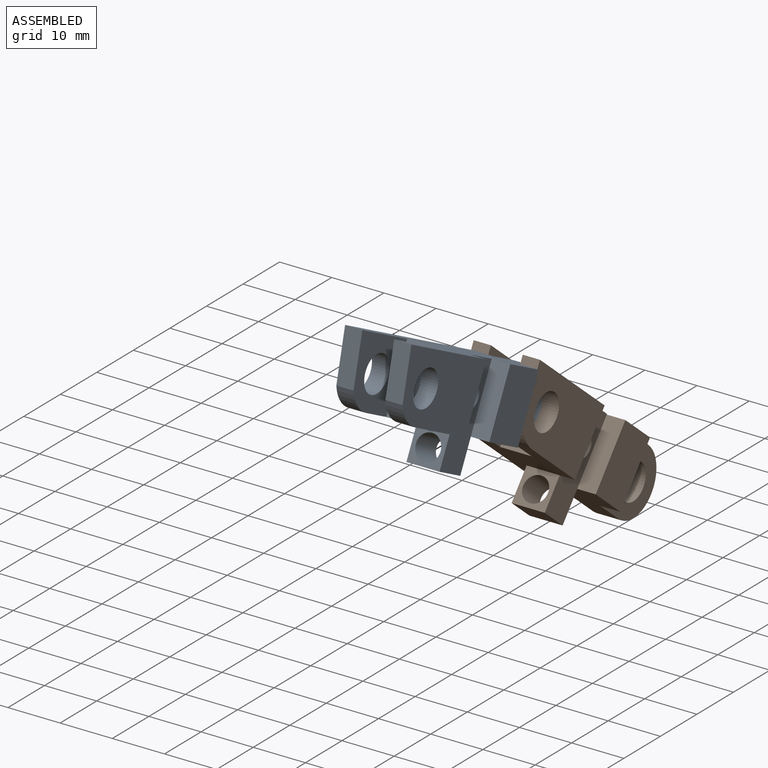
[diagram: assembled view]
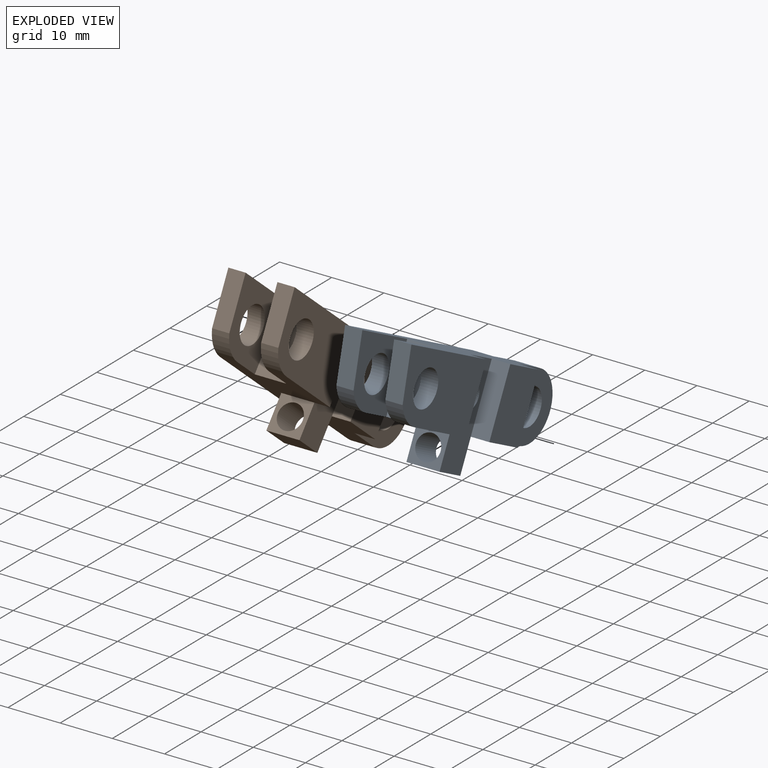
[diagram: exploded view]
GUIDED TOUR — MATED ASSEMBLY WITH SUBASSEMBLIES (Onshape document e4f9c308d3d471a792836808, AutoMate assembly e4f9c308d3d471a792836808_c41b21830b635fe07dd93711_46ee412eae17d96153552972_default)

This assembly has 4 component occurrences arranged in 2 top-level units: 0 individual components plus 2 subassemblies (S0, S1). The tour has two levels: first the top level, where each subassembly is treated as one rigid unit; then each subassembly is toured internally in its own section (nesting deeper than one subassembly level is flattened into its subassembly's section).

Components are labeled P0..P3 across the whole record; subassembly units are labeled S0..S1. A mate is a constraint between two units; its type names the relative motion it leaves free:
  PLANAR — leaves sliding in the plane through the listed point (normal = the listed direction) and rotation about that normal free,
  REVOLUTE — leaves rotation about the listed axis free (a hinge).
Axis/direction vectors are unit vectors and 'through' points are millimeter coordinates, both in the assembly's world frame.

TOP-LEVEL MATES (between units; each subassembly's internal mates are listed in its own section)
  1. REVOLUTE "Revolute 1": S0 <-> S1, axis (-1.000, 0.000, 0.000) through (2.48, 12.02, 28.86) mm

TOP-LEVEL ASSEMBLY ORDER
  1. S0 — the base component [order heuristic]
  2. S1 [order heuristic]
Order-tag legend:
  [order heuristic] — this assembly is geometrically interlocked (no collision-free removal order exists), so components are listed in mate-graph order; insertion feasibility is not verified.

Of the 4 component occurrences, 4 carry the full construction recipe — the FeatureScript program that regenerates the part's solid from scratch; the rest are supplied as boundary geometry only. Each toured unit is shown spotlighted twice — assembled, then exploded with a leader line back to its socket (green = recipe-attached component, orange = geometry-only, blue = subassembly unit; the rest desaturated gray).
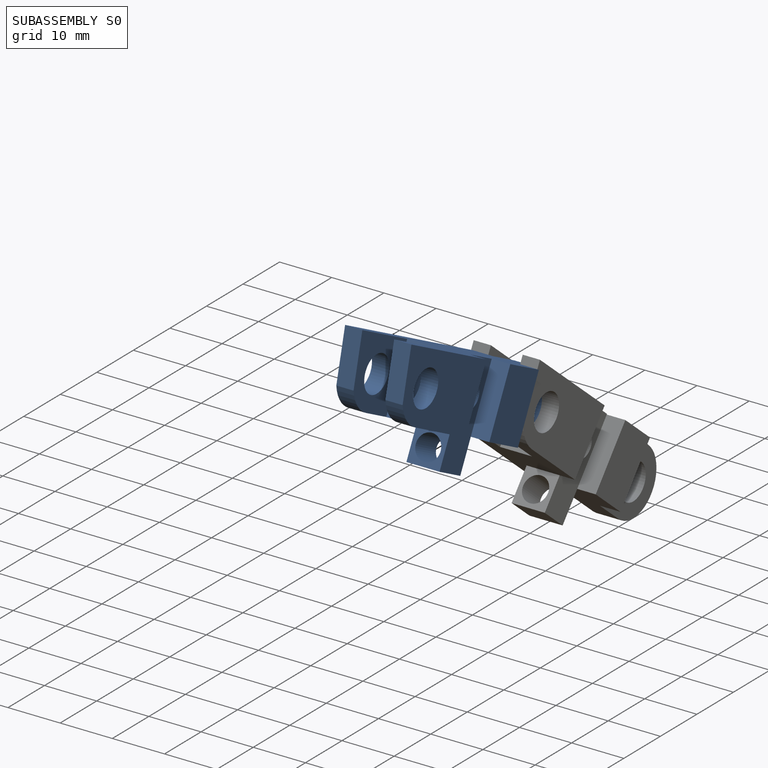
[diagram: subassembly S0 — assembled]
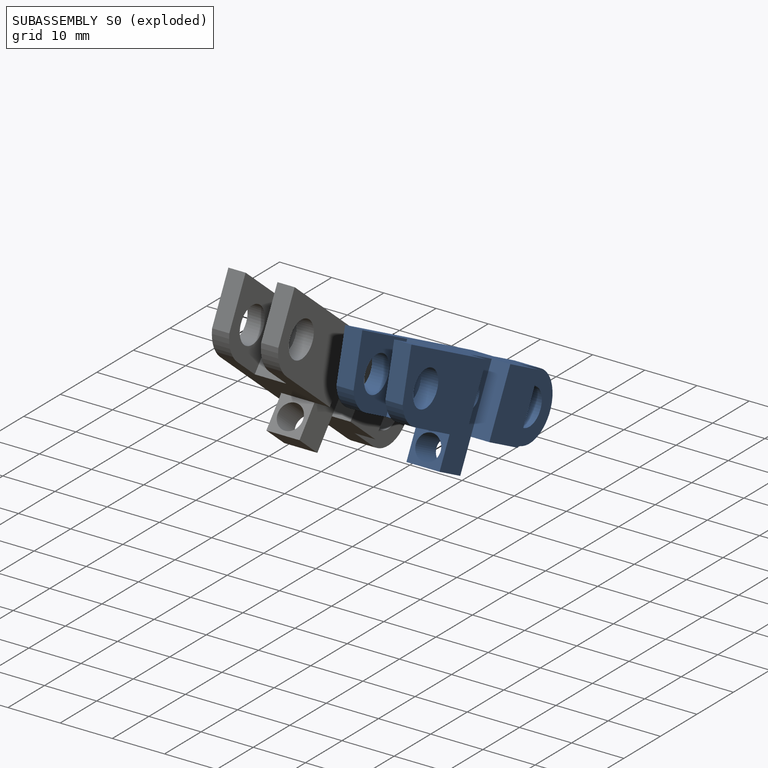
[diagram: subassembly S0 — exploded]
SUBASSEMBLY S0 — 2 components (P0, P1), of which 2 recipe-attached; toured below.
Held by: REVOLUTE mate "Revolute 1" to S1.
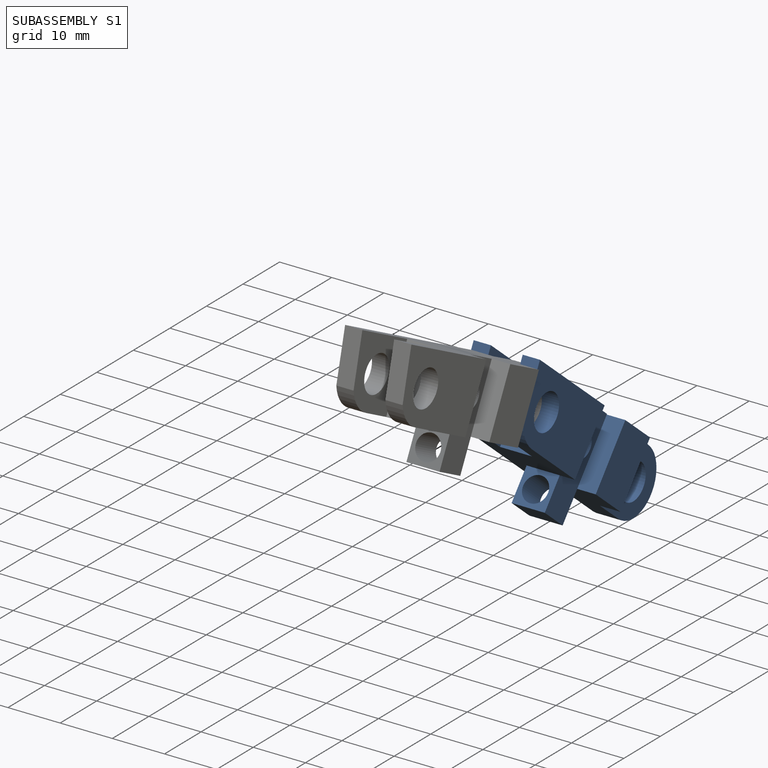
[diagram: subassembly S1 — assembled]
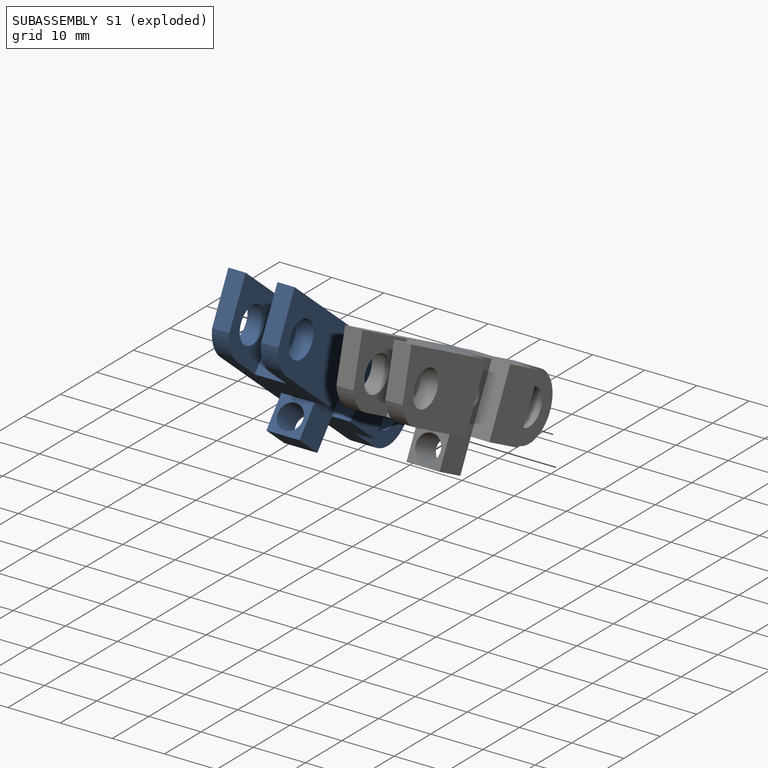
[diagram: subassembly S1 — exploded]
SUBASSEMBLY S1 — 2 components (P2, P3), of which 2 recipe-attached; toured below.
Held by: REVOLUTE mate "Revolute 1" to S0.
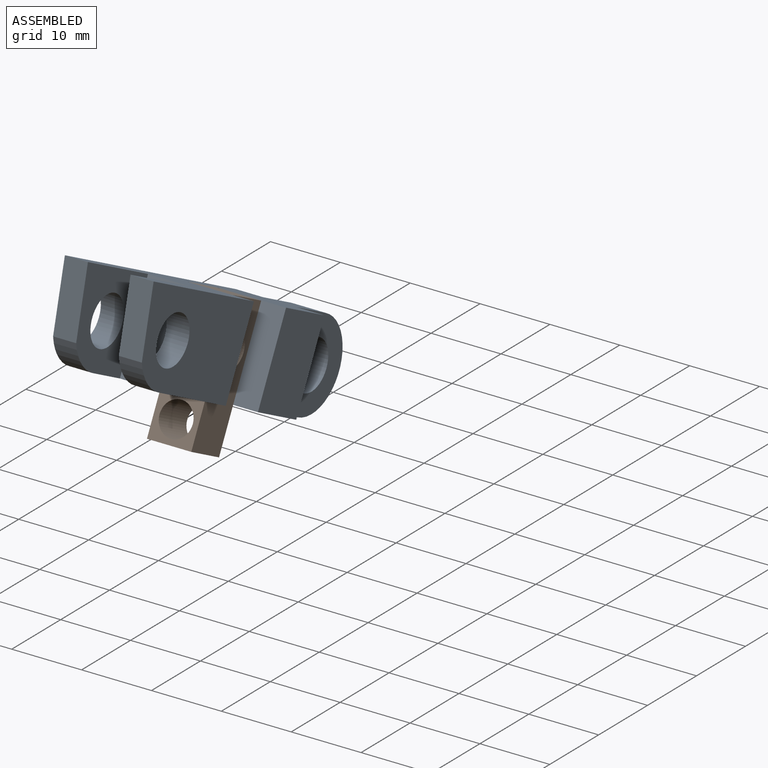
[diagram: subassembly S0 — assembled view]
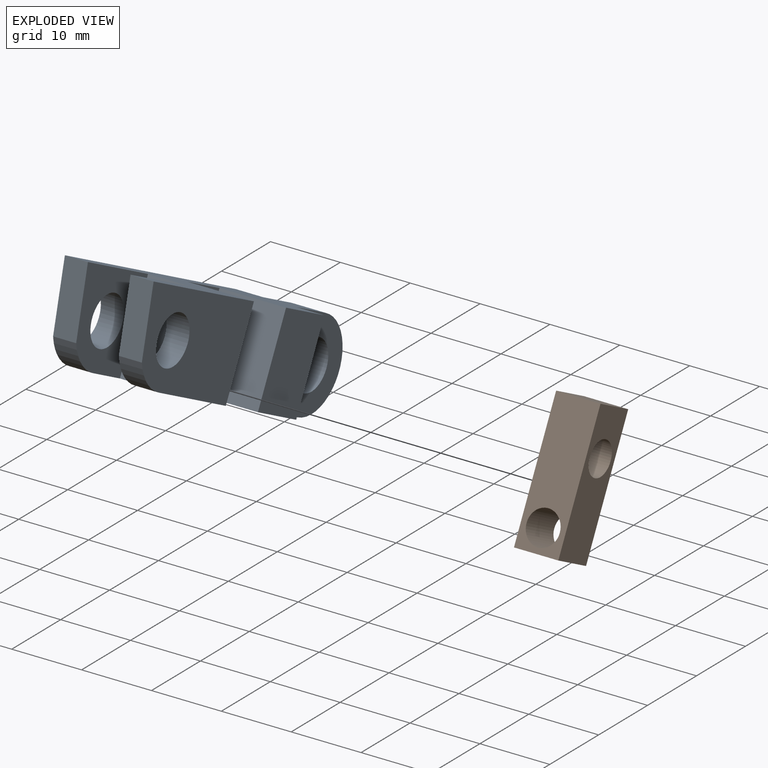
[diagram: subassembly S0 — exploded view]
SUBASSEMBLY S0 TOUR — 2 components, shown here in isolation at its own camera.

INTERNAL MATES
  1. REVOLUTE "Revolute 3": P0 <-> P1, axis (1.000, 0.000, 0.000) through (-3.10, -5.07, 37.52) mm
  2. PLANAR "Planar 1": P0 <-> P1, direction (0.000, 0.452, 0.892) through (1.66, -5.38, 44.80) mm
  3. REVOLUTE "Revolute 3": P0 <-> P1, axis (1.000, 0.000, 0.000) through (-3.10, -5.07, 37.52) mm
  4. PLANAR "Planar 1": P0 <-> P1, direction (0.000, 0.452, 0.892) through (1.66, -5.38, 44.80) mm

ASSEMBLY ORDER (within the subassembly)
  1. P0 — the base component [order verified]
  2. P1 [order verified]
Order-tag legend:
  [order verified] — this step's position reverses a verified removal order: the component was checked to insert without passing through the ones already placed.
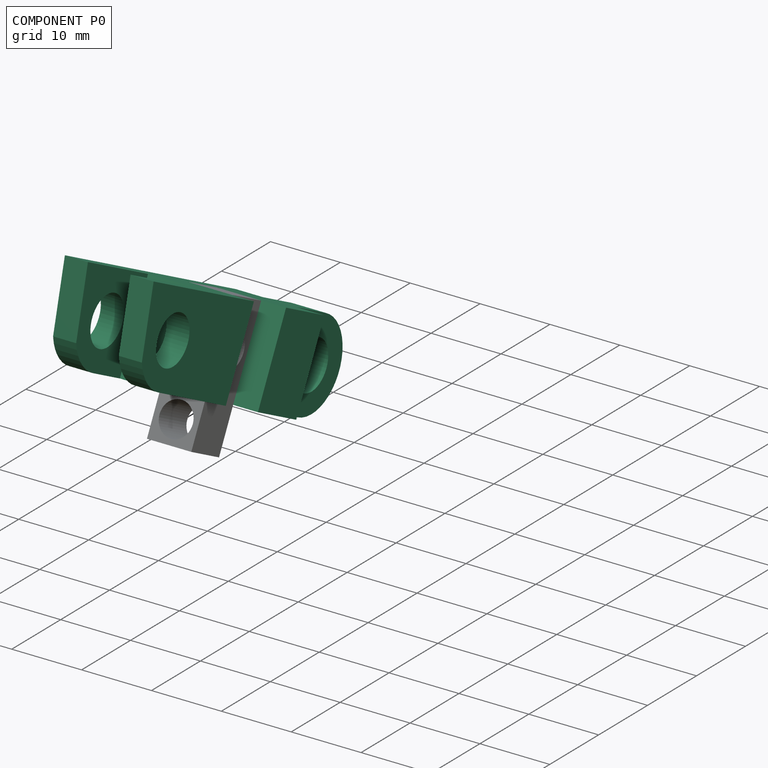
[diagram: component P0 — assembled]
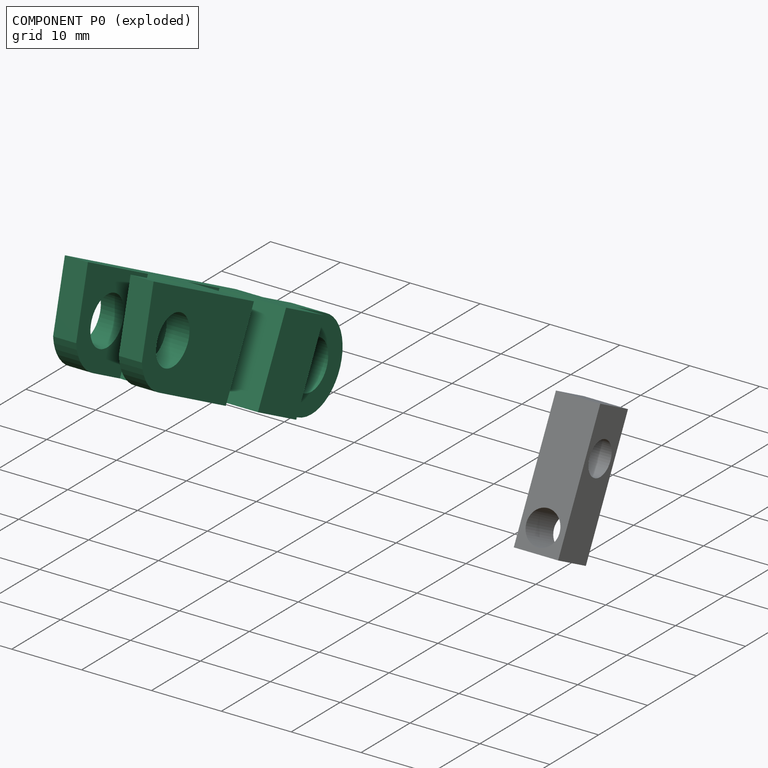
[diagram: component P0 — exploded]
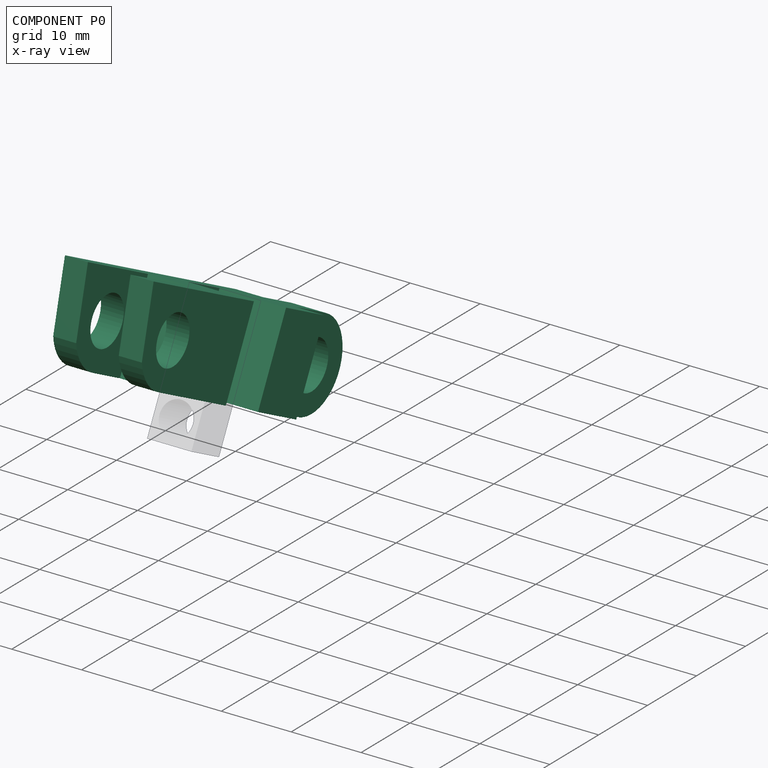
[diagram: component P0 — x-ray view]
COMPONENT P0 — recipe-attached (CADFS 00446565, mesh-verified: the recipe's output STEP matches this component's geometry to below the mesh-comparison resolution (tessellation chordal tolerance ~0.0826 mm)).
Held by: REVOLUTE mate "Revolute 3" to P1; PLANAR mate "Planar 1" to P1; REVOLUTE mate "Revolute 3" to P1; PLANAR mate "Planar 1" to P1.
Construction recipe (FeatureScript — the CAD program that rebuilds this solid; sketch coordinates are in the units given by the * unit suffixes, e.g. mm):

FeatureScript 1511;
import(path : "onshape/std/geometry.fs", version : "1511.0");
import(path : "onshape/std/common.fs", version : "1511.0");
const mm = millimeter;
const VERTEX = EntityType.VERTEX;
const EDGE = EntityType.EDGE;
const FACE = EntityType.FACE;
const BODY = EntityType.BODY;
function v(x, y){return vector(x, y);}
function OD(order){return orderDisambiguation(order);}
function OSD(set){return originalSetDisambiguation(set);}
function TD(topology){return topologyDisambiguation(topology);}
function TDD(query){return trueDependencyDisambiguation(query);}
function sQuery(a, b, c) {return sketchEntityQuery(a, b, c);}

annotation { "Feature Type Name" : "Feature", "Feature Type Description" : "" }
export const myFeature = defineFeature(function(context is Context, id is Id, definition is map)
    precondition{}
    {
        {
            var Q0;
            Q0=qCreatedBy(makeId("Right.planeOp"),FACE);
            var sketch = newSketch(context, id + "F0", { "sketchPlane" : qUnion([Q0])});
            skLineSegment(sketch, "E0.bottom", {"start": v(6.35, 0) * mm, "end": v(44.45, 0) * mm});
            skLineSegment(sketch, "E0.top", {"start": v(0, 12.7) * mm, "end": v(44.45, 12.7) * mm});
            skLineSegment(sketch, "E0.right", {"start": v(50.8, 6.35) * mm, "end": v(50.8, 6.35) * mm});
            skPoint(sketch, "E1.visualSharp", {"position": v(0, 0) * mm});
            skPoint(sketch, "E2.visualSharp", {"position": v(50.8, 0) * mm});
            skArc(sketch, "E2.filletArc", {"start": v(44.45, 0) * mm, "mid": v(48.94, 1.86) * mm, "end": v(50.8, 6.35) * mm});
            skPoint(sketch, "E3.visualSharp", {"position": v(50.8, 12.7) * mm});
            skArc(sketch, "E3.filletArc", {"start": v(50.8, 6.35) * mm, "mid": v(48.94, 10.84) * mm, "end": v(44.45, 12.7) * mm});
            skCircle(sketch, "E4", {"center": v(44.45, 6.35) * mm, "radius": 3.43 * mm});
            skCircle(sketch, "E5", {"center": v(6.35, 6.35) * mm, "radius": 3.43 * mm});
            skLineSegment(sketch, "E6", {"start": v(0, 12.7) * mm, "end": v(-1.27, 12.7) * mm});
            skArc(sketch, "E7", {"start": v(6.35, 0) * mm, "mid": v(3.23, 0.82) * mm, "end": v(0.91, 3.07) * mm});
            skLineSegment(sketch, "E8", {"start": v(-1.27, 12.7) * mm, "end": v(0.91, 3.07) * mm});
            skSolve(sketch);
        }
        {
            var Q0;
            Q0 = qSketchRegion(id + "F0", true);
            extrude(context, id + "F1", {"entities" : qUnion([Q0]), "depth" : 12.7 * mm});
        }
        {
            var Q0;
            Q0=makeQuery(id+"F1.opExtrude","SWEPT_FACE",FACE,{"disambiguationData":[OSD([sQuery(id+"F0.wireOp",EDGE,"E0.top")])]});
            var sketch = newSketch(context, id + "F2", { "sketchPlane" : qUnion([Q0])});
            skLineSegment(sketch, "E9.bottom", {"start": v(9.4, -9.23) * mm, "end": v(3.3, -9.23) * mm});
            skLineSegment(sketch, "E9.top", {"start": v(9.4, 12.5) * mm, "end": v(3.3, 12.5) * mm});
            skLineSegment(sketch, "E9.left", {"start": v(9.4, -9.23) * mm, "end": v(9.4, 12.5) * mm});
            skLineSegment(sketch, "E9.right", {"start": v(3.3, -9.23) * mm, "end": v(3.3, 12.5) * mm});
            skLineSegment(sketch, "E10.bottom", {"start": v(0, 51.09) * mm, "end": v(3.94, 51.09) * mm});
            skLineSegment(sketch, "E10.top", {"start": v(0, 37.85) * mm, "end": v(3.94, 37.85) * mm});
            skLineSegment(sketch, "E10.left", {"start": v(0, 51.09) * mm, "end": v(0, 37.85) * mm});
            skLineSegment(sketch, "E10.right", {"start": v(3.94, 51.09) * mm, "end": v(3.94, 37.85) * mm});
            skLineSegment(sketch, "E11.bottom", {"start": v(12.7, 37.85) * mm, "end": v(8.76, 37.85) * mm});
            skLineSegment(sketch, "E11.top", {"start": v(12.7, 51.09) * mm, "end": v(8.76, 51.09) * mm});
            skLineSegment(sketch, "E11.left", {"start": v(12.7, 37.85) * mm, "end": v(12.7, 51.09) * mm});
            skLineSegment(sketch, "E11.right", {"start": v(8.76, 37.85) * mm, "end": v(8.76, 51.09) * mm});
            skSolve(sketch);
        }
        {
            var Q0;
            Q0 = qSketchRegion(id + "F2", true);
            extrude(context, id + "F3", {"entities" : qUnion([Q0]), "operationType" : NewBodyOperationType.REMOVE, "oppositeDirection" : true, "depth" : 25.4 * mm});
        }
        {
            var Q0;
            Q0=makeQuery(id+"F1.opExtrude","CAP_FACE",FACE,{"disambiguationData":[OSD([sQuery(id+"F0.wireOp",EDGE,"E0.bottom"),sQuery(id+"F0.wireOp",EDGE,"E0.top"),sQuery(id+"F0.wireOp",EDGE,"E0.left"),sQuery(id+"F0.wireOp",EDGE,"E1.filletArc"),sQuery(id+"F0.wireOp",EDGE,"E2.filletArc"),sQuery(id+"F0.wireOp",EDGE,"E3.filletArc"),sQuery(id+"F0.wireOp",EDGE,"E4"),sQuery(id+"F0.wireOp",EDGE,"E5")])],"isStart":false});
            var sketch = newSketch(context, id + "F4", { "sketchPlane" : qUnion([Q0])});
            skLineSegment(sketch, "E12.bottom", {"start": v(21.72, 12.7) * mm, "end": v(29.08, 12.7) * mm});
            skLineSegment(sketch, "E12.top", {"start": v(21.72, 0) * mm, "end": v(29.08, 0) * mm});
            skLineSegment(sketch, "E12.left", {"start": v(21.72, 12.7) * mm, "end": v(21.72, 0) * mm});
            skLineSegment(sketch, "E12.right", {"start": v(29.08, 12.7) * mm, "end": v(29.08, 0) * mm});
            skSolve(sketch);
        }
        {
            var Q0;
            Q0 = qSketchRegion(id + "F4", true);
            extrude(context, id + "F5", {"entities" : qUnion([Q0]), "operationType" : NewBodyOperationType.REMOVE, "oppositeDirection" : true, "depth" : 9.52 * mm});
        }
        {
            var Q0;
            Q0=makeQuery(id+"F5.boolean.opBoolean","COPY",FACE,{"derivedFrom":makeQuery(id+"F5.opExtrude","CAP_FACE",FACE,{"disambiguationData":[OSD([sQuery(id+"F4.wireOp",EDGE,"E12.bottom"),sQuery(id+"F4.wireOp",EDGE,"E12.top"),sQuery(id+"F4.wireOp",EDGE,"E12.left"),sQuery(id+"F4.wireOp",EDGE,"E12.right")])],"isStart":false})});
            var sketch = newSketch(context, id + "F6", { "sketchPlane" : qUnion([Q0])});
            skCircle(sketch, "E13", {"center": v(25.3, 6.35) * mm, "radius": 2.64 * mm});
            skSolve(sketch);
        }
        {
            var Q0;
            Q0 = qSketchRegion(id + "F6", true);
            extrude(context, id + "F7", {"entities" : qUnion([Q0]), "operationType" : NewBodyOperationType.REMOVE, "oppositeDirection" : true, "depth" : 25.4 * mm});
        }
    });
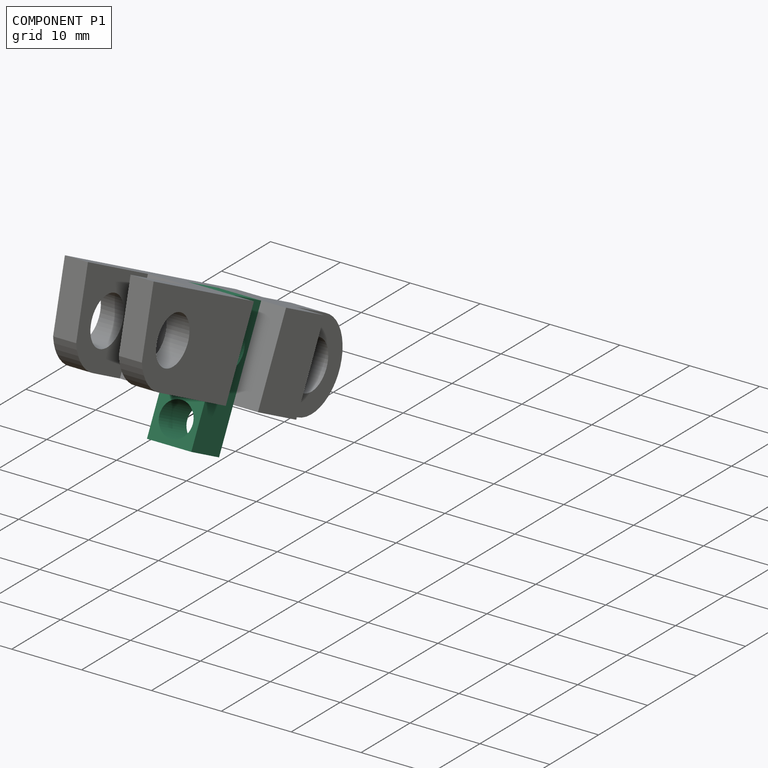
[diagram: component P1 — assembled]
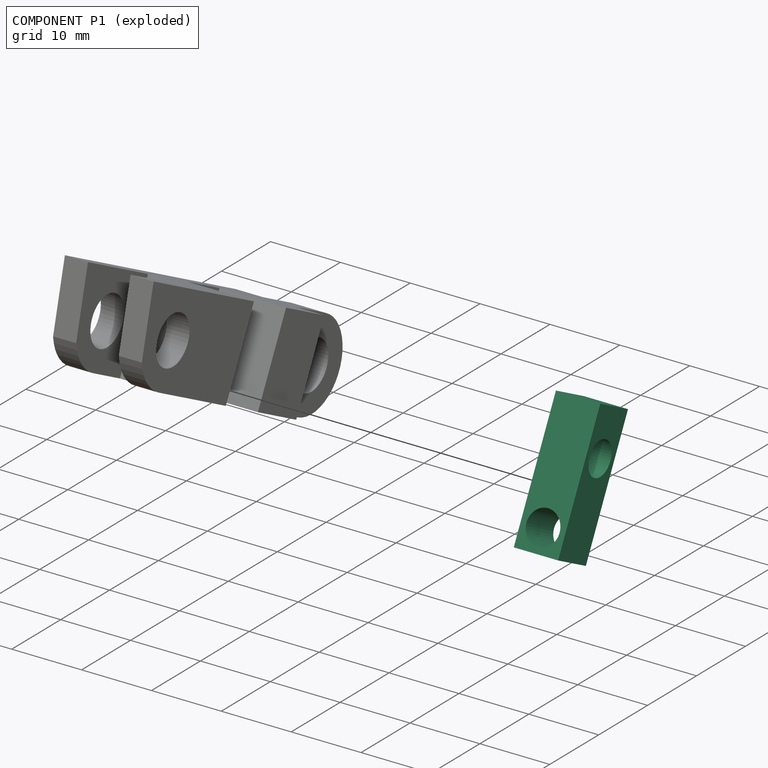
[diagram: component P1 — exploded]
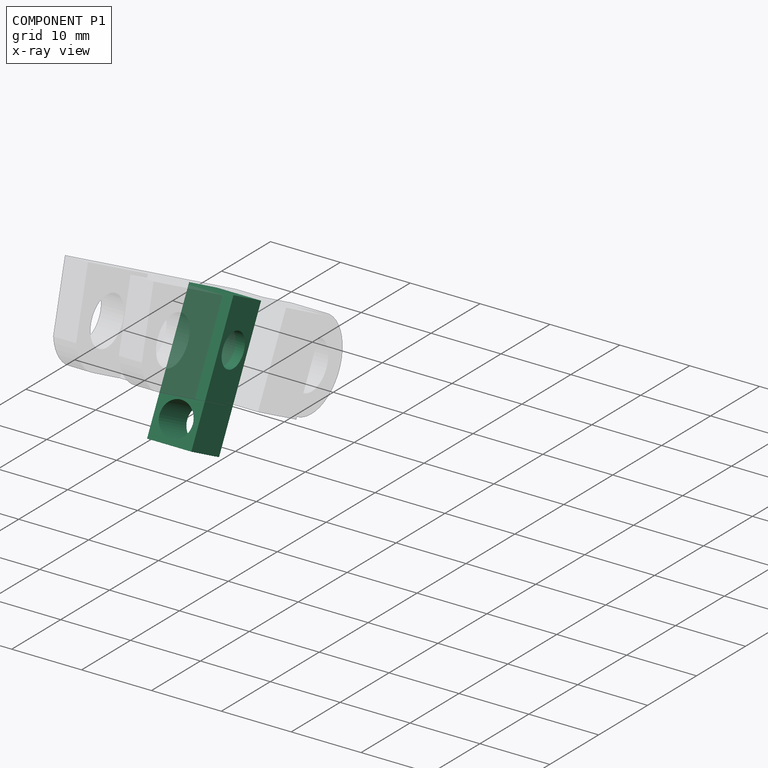
[diagram: component P1 — x-ray view]
COMPONENT P1 — recipe-attached (CADFS 00446566, mesh-verified: the recipe's output STEP matches this component's geometry to below the mesh-comparison resolution (tessellation chordal tolerance ~0.0316 mm)).
Held by: REVOLUTE mate "Revolute 3" to P0; PLANAR mate "Planar 1" to P0; REVOLUTE mate "Revolute 3" to P0; PLANAR mate "Planar 1" to P0.
Construction recipe (FeatureScript — the CAD program that rebuilds this solid; sketch coordinates are in the units given by the * unit suffixes, e.g. mm):

FeatureScript 1511;
import(path : "onshape/std/geometry.fs", version : "1511.0");
import(path : "onshape/std/common.fs", version : "1511.0");
const mm = millimeter;
const VERTEX = EntityType.VERTEX;
const EDGE = EntityType.EDGE;
const FACE = EntityType.FACE;
const BODY = EntityType.BODY;
function v(x, y){return vector(x, y);}
function OD(order){return orderDisambiguation(order);}
function OSD(set){return originalSetDisambiguation(set);}
function TD(topology){return topologyDisambiguation(topology);}
function TDD(query){return trueDependencyDisambiguation(query);}
function sQuery(a, b, c) {return sketchEntityQuery(a, b, c);}

annotation { "Feature Type Name" : "Feature", "Feature Type Description" : "" }
export const myFeature = defineFeature(function(context is Context, id is Id, definition is map)
    precondition{}
    {
        {
            var Q0;
            Q0=qCreatedBy(makeId("Right.planeOp"),FACE);
            var sketch = newSketch(context, id + "F0", { "sketchPlane" : qUnion([Q0])});
            skLineSegment(sketch, "E0.bottom", {"start": v(0, 0) * mm, "end": v(6.35, 0) * mm});
            skLineSegment(sketch, "E0.top", {"start": v(0, 19.05) * mm, "end": v(6.35, 19.05) * mm});
            skLineSegment(sketch, "E0.left", {"start": v(0, 0) * mm, "end": v(0, 19.05) * mm});
            skLineSegment(sketch, "E0.right", {"start": v(6.35, 0) * mm, "end": v(6.35, 19.05) * mm});
            skCircle(sketch, "E1", {"center": v(3.17, 6.35) * mm, "radius": 2.38 * mm});
            skPoint(sketch, "E2", {"position": v(3.18, 0) * mm});
            skSolve(sketch);
        }
        {
            var Q0;
            Q0 = qSketchRegion(id + "F0", true);
            extrude(context, id + "F1", {"entities" : qUnion([Q0]), "depth" : 6.35 * mm});
        }
        {
            var Q0;
            Q0=makeQuery(id+"F1.opExtrude","SWEPT_FACE",FACE,{"disambiguationData":[OSD([sQuery(id+"F0.wireOp",EDGE,"E0.right")])]});
            var sketch = newSketch(context, id + "F2", { "sketchPlane" : qUnion([Q0])});
            skCircle(sketch, "E3", {"center": v(-3.18, 15.88) * mm, "radius": 2.38 * mm});
            skPoint(sketch, "E3.centerSnap0", {"position": v(-3.18, 19.05) * mm});
            skSolve(sketch);
        }
        {
            var Q0;
            Q0 = qSketchRegion(id + "F2", true);
            extrude(context, id + "F3", {"entities" : qUnion([Q0]), "operationType" : NewBodyOperationType.REMOVE, "oppositeDirection" : true, "depth" : 25.4 * mm});
        }
    });
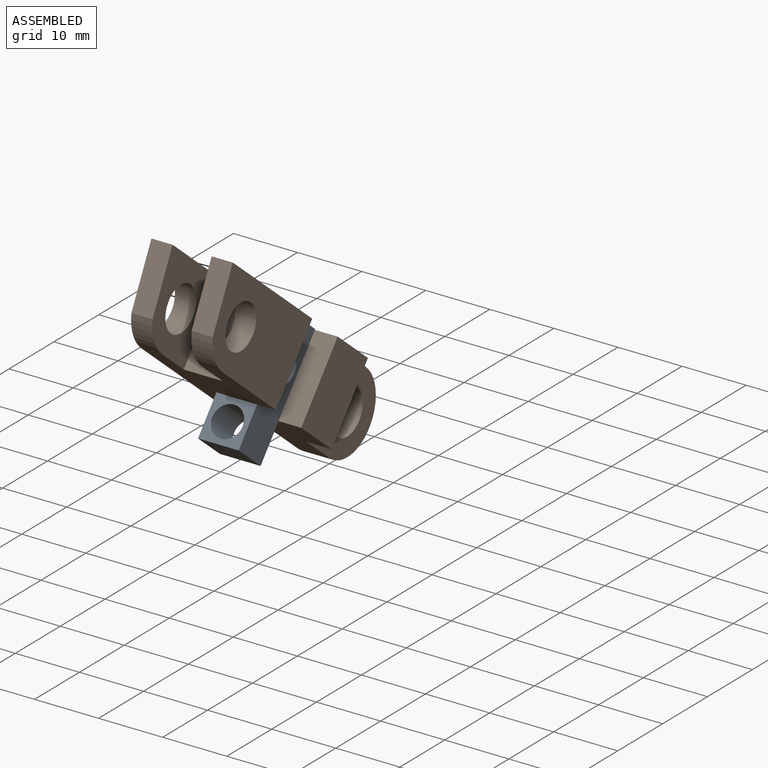
[diagram: subassembly S1 — assembled view]
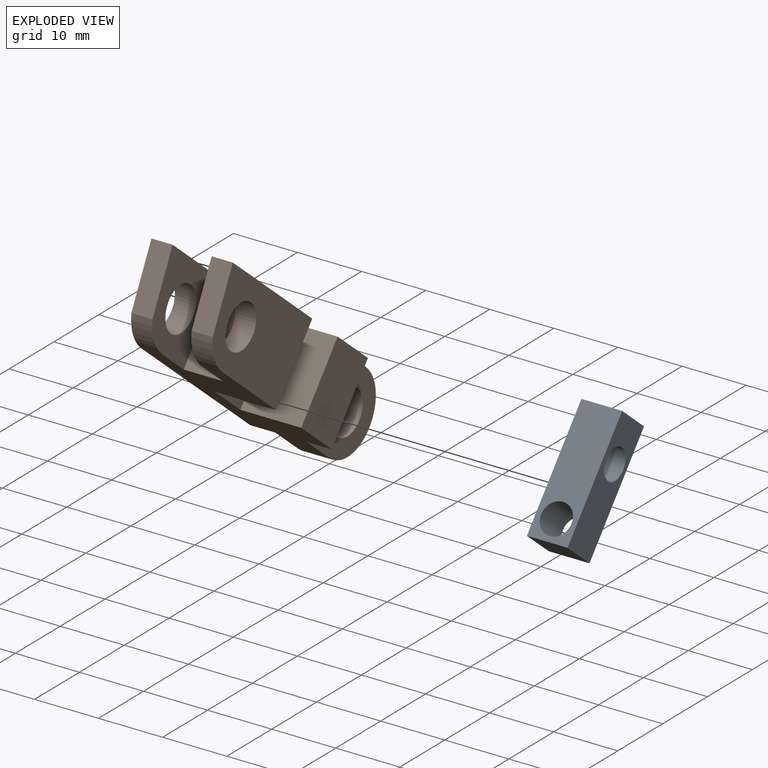
[diagram: subassembly S1 — exploded view]
SUBASSEMBLY S1 TOUR — 2 components, shown here in isolation at its own camera.

INTERNAL MATES
  1. REVOLUTE "Revolute 3": P3 <-> P2, axis (1.000, 0.000, 0.000) through (-3.74, 26.60, 16.77) mm
  2. PLANAR "Planar 1": P3 <-> P2, direction (0.000, 0.638, 0.770) through (1.02, 27.90, 23.94) mm
  3. PLANAR "Planar 1": P3 <-> P2, direction (0.000, 0.638, 0.770) through (1.02, 27.90, 23.94) mm
  4. REVOLUTE "Revolute 3": P3 <-> P2, axis (1.000, 0.000, 0.000) through (-3.74, 26.60, 16.77) mm

ASSEMBLY ORDER (within the subassembly)
  1. P3 — the base component [order verified]
  2. P2 [order verified]
Order-tag legend:
  [order verified] — this step's position reverses a verified removal order: the component was checked to insert without passing through the ones already placed.
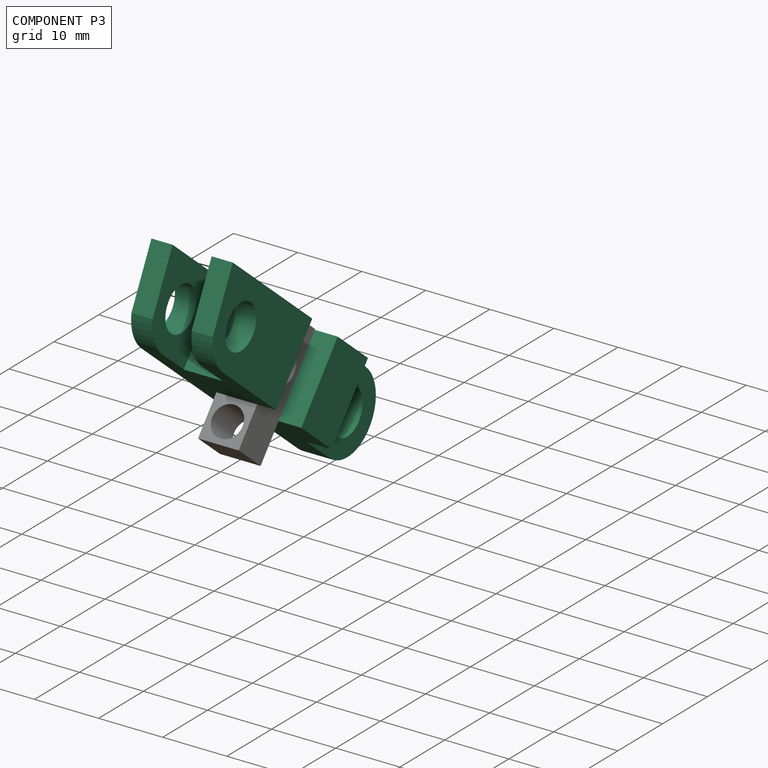
[diagram: component P3 — assembled]
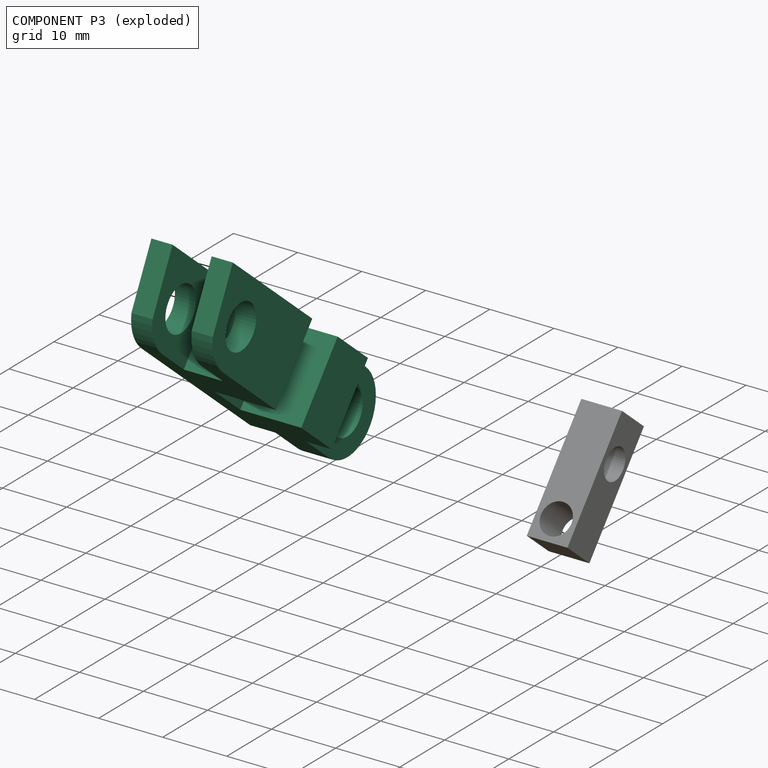
[diagram: component P3 — exploded]
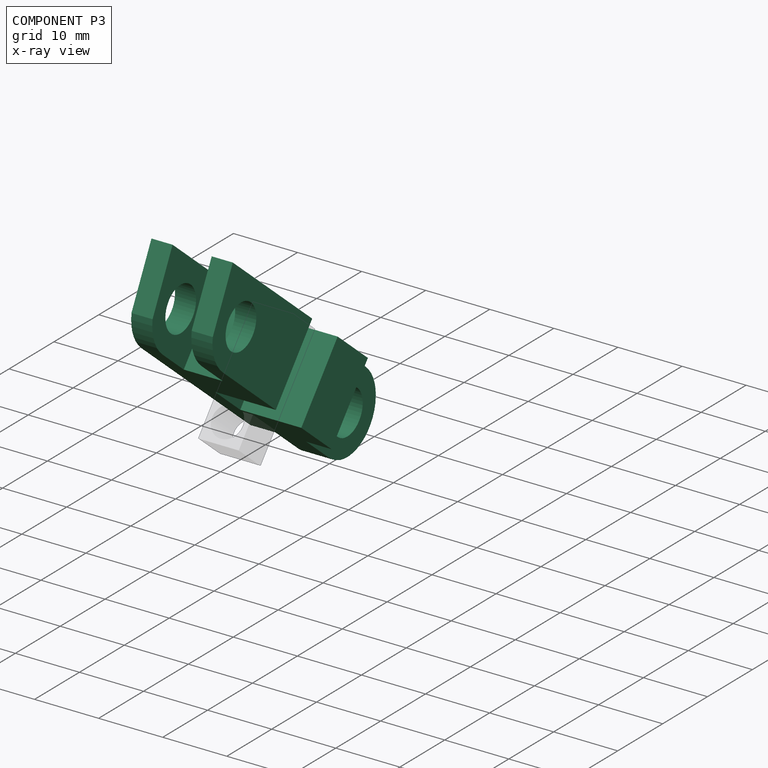
[diagram: component P3 — x-ray view]
COMPONENT P3 — recipe-attached (CADFS 00446565, mesh-verified: the recipe's output STEP matches this component's geometry to below the mesh-comparison resolution (tessellation chordal tolerance ~0.0826 mm)).
Held by: REVOLUTE mate "Revolute 3" to P2; PLANAR mate "Planar 1" to P2; PLANAR mate "Planar 1" to P2; REVOLUTE mate "Revolute 3" to P2.
Construction recipe (FeatureScript — the CAD program that rebuilds this solid; sketch coordinates are in the units given by the * unit suffixes, e.g. mm):

FeatureScript 1511;
import(path : "onshape/std/geometry.fs", version : "1511.0");
import(path : "onshape/std/common.fs", version : "1511.0");
const mm = millimeter;
const VERTEX = EntityType.VERTEX;
const EDGE = EntityType.EDGE;
const FACE = EntityType.FACE;
const BODY = EntityType.BODY;
function v(x, y){return vector(x, y);}
function OD(order){return orderDisambiguation(order);}
function OSD(set){return originalSetDisambiguation(set);}
function TD(topology){return topologyDisambiguation(topology);}
function TDD(query){return trueDependencyDisambiguation(query);}
function sQuery(a, b, c) {return sketchEntityQuery(a, b, c);}

annotation { "Feature Type Name" : "Feature", "Feature Type Description" : "" }
export const myFeature = defineFeature(function(context is Context, id is Id, definition is map)
    precondition{}
    {
        {
            var Q0;
            Q0=qCreatedBy(makeId("Right.planeOp"),FACE);
            var sketch = newSketch(context, id + "F0", { "sketchPlane" : qUnion([Q0])});
            skLineSegment(sketch, "E0.bottom", {"start": v(6.35, 0) * mm, "end": v(44.45, 0) * mm});
            skLineSegment(sketch, "E0.top", {"start": v(0, 12.7) * mm, "end": v(44.45, 12.7) * mm});
            skLineSegment(sketch, "E0.right", {"start": v(50.8, 6.35) * mm, "end": v(50.8, 6.35) * mm});
            skPoint(sketch, "E1.visualSharp", {"position": v(0, 0) * mm});
            skPoint(sketch, "E2.visualSharp", {"position": v(50.8, 0) * mm});
            skArc(sketch, "E2.filletArc", {"start": v(44.45, 0) * mm, "mid": v(48.94, 1.86) * mm, "end": v(50.8, 6.35) * mm});
            skPoint(sketch, "E3.visualSharp", {"position": v(50.8, 12.7) * mm});
            skArc(sketch, "E3.filletArc", {"start": v(50.8, 6.35) * mm, "mid": v(48.94, 10.84) * mm, "end": v(44.45, 12.7) * mm});
            skCircle(sketch, "E4", {"center": v(44.45, 6.35) * mm, "radius": 3.43 * mm});
            skCircle(sketch, "E5", {"center": v(6.35, 6.35) * mm, "radius": 3.43 * mm});
            skLineSegment(sketch, "E6", {"start": v(0, 12.7) * mm, "end": v(-1.27, 12.7) * mm});
            skArc(sketch, "E7", {"start": v(6.35, 0) * mm, "mid": v(3.23, 0.82) * mm, "end": v(0.91, 3.07) * mm});
            skLineSegment(sketch, "E8", {"start": v(-1.27, 12.7) * mm, "end": v(0.91, 3.07) * mm});
            skSolve(sketch);
        }
        {
            var Q0;
            Q0 = qSketchRegion(id + "F0", true);
            extrude(context, id + "F1", {"entities" : qUnion([Q0]), "depth" : 12.7 * mm});
        }
        {
            var Q0;
            Q0=makeQuery(id+"F1.opExtrude","SWEPT_FACE",FACE,{"disambiguationData":[OSD([sQuery(id+"F0.wireOp",EDGE,"E0.top")])]});
            var sketch = newSketch(context, id + "F2", { "sketchPlane" : qUnion([Q0])});
            skLineSegment(sketch, "E9.bottom", {"start": v(9.4, -9.23) * mm, "end": v(3.3, -9.23) * mm});
            skLineSegment(sketch, "E9.top", {"start": v(9.4, 12.5) * mm, "end": v(3.3, 12.5) * mm});
            skLineSegment(sketch, "E9.left", {"start": v(9.4, -9.23) * mm, "end": v(9.4, 12.5) * mm});
            skLineSegment(sketch, "E9.right", {"start": v(3.3, -9.23) * mm, "end": v(3.3, 12.5) * mm});
            skLineSegment(sketch, "E10.bottom", {"start": v(0, 51.09) * mm, "end": v(3.94, 51.09) * mm});
            skLineSegment(sketch, "E10.top", {"start": v(0, 37.85) * mm, "end": v(3.94, 37.85) * mm});
            skLineSegment(sketch, "E10.left", {"start": v(0, 51.09) * mm, "end": v(0, 37.85) * mm});
            skLineSegment(sketch, "E10.right", {"start": v(3.94, 51.09) * mm, "end": v(3.94, 37.85) * mm});
            skLineSegment(sketch, "E11.bottom", {"start": v(12.7, 37.85) * mm, "end": v(8.76, 37.85) * mm});
            skLineSegment(sketch, "E11.top", {"start": v(12.7, 51.09) * mm, "end": v(8.76, 51.09) * mm});
            skLineSegment(sketch, "E11.left", {"start": v(12.7, 37.85) * mm, "end": v(12.7, 51.09) * mm});
            skLineSegment(sketch, "E11.right", {"start": v(8.76, 37.85) * mm, "end": v(8.76, 51.09) * mm});
            skSolve(sketch);
        }
        {
            var Q0;
            Q0 = qSketchRegion(id + "F2", true);
            extrude(context, id + "F3", {"entities" : qUnion([Q0]), "operationType" : NewBodyOperationType.REMOVE, "oppositeDirection" : true, "depth" : 25.4 * mm});
        }
        {
            var Q0;
            Q0=makeQuery(id+"F1.opExtrude","CAP_FACE",FACE,{"disambiguationData":[OSD([sQuery(id+"F0.wireOp",EDGE,"E0.bottom"),sQuery(id+"F0.wireOp",EDGE,"E0.top"),sQuery(id+"F0.wireOp",EDGE,"E0.left"),sQuery(id+"F0.wireOp",EDGE,"E1.filletArc"),sQuery(id+"F0.wireOp",EDGE,"E2.filletArc"),sQuery(id+"F0.wireOp",EDGE,"E3.filletArc"),sQuery(id+"F0.wireOp",EDGE,"E4"),sQuery(id+"F0.wireOp",EDGE,"E5")])],"isStart":false});
            var sketch = newSketch(context, id + "F4", { "sketchPlane" : qUnion([Q0])});
            skLineSegment(sketch, "E12.bottom", {"start": v(21.72, 12.7) * mm, "end": v(29.08, 12.7) * mm});
            skLineSegment(sketch, "E12.top", {"start": v(21.72, 0) * mm, "end": v(29.08, 0) * mm});
            skLineSegment(sketch, "E12.left", {"start": v(21.72, 12.7) * mm, "end": v(21.72, 0) * mm});
            skLineSegment(sketch, "E12.right", {"start": v(29.08, 12.7) * mm, "end": v(29.08, 0) * mm});
            skSolve(sketch);
        }
        {
            var Q0;
            Q0 = qSketchRegion(id + "F4", true);
            extrude(context, id + "F5", {"entities" : qUnion([Q0]), "operationType" : NewBodyOperationType.REMOVE, "oppositeDirection" : true, "depth" : 9.52 * mm});
        }
        {
            var Q0;
            Q0=makeQuery(id+"F5.boolean.opBoolean","COPY",FACE,{"derivedFrom":makeQuery(id+"F5.opExtrude","CAP_FACE",FACE,{"disambiguationData":[OSD([sQuery(id+"F4.wireOp",EDGE,"E12.bottom"),sQuery(id+"F4.wireOp",EDGE,"E12.top"),sQuery(id+"F4.wireOp",EDGE,"E12.left"),sQuery(id+"F4.wireOp",EDGE,"E12.right")])],"isStart":false})});
            var sketch = newSketch(context, id + "F6", { "sketchPlane" : qUnion([Q0])});
            skCircle(sketch, "E13", {"center": v(25.3, 6.35) * mm, "radius": 2.64 * mm});
            skSolve(sketch);
        }
        {
            var Q0;
            Q0 = qSketchRegion(id + "F6", true);
            extrude(context, id + "F7", {"entities" : qUnion([Q0]), "operationType" : NewBodyOperationType.REMOVE, "oppositeDirection" : true, "depth" : 25.4 * mm});
        }
    });
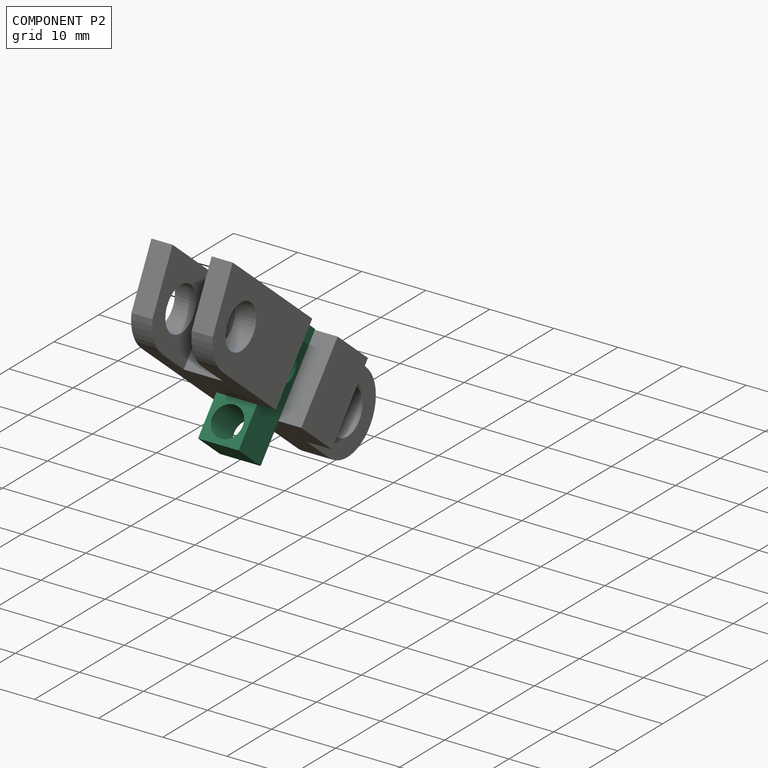
[diagram: component P2 — assembled]
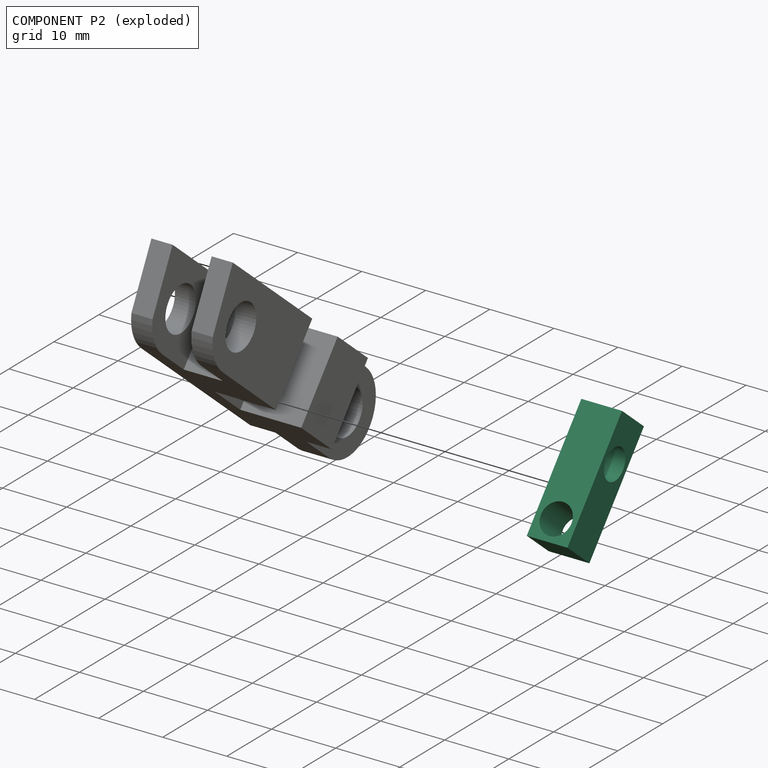
[diagram: component P2 — exploded]
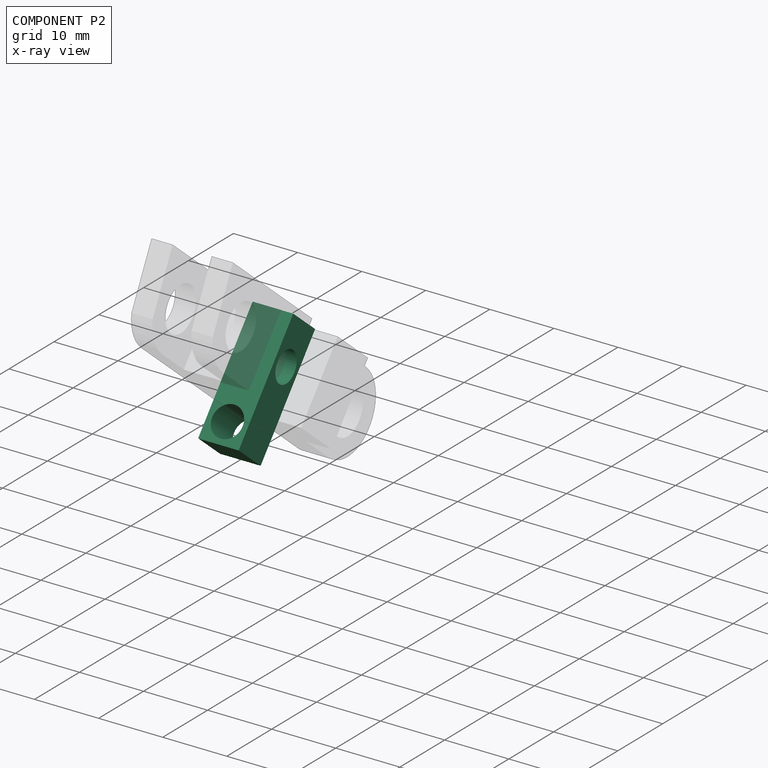
[diagram: component P2 — x-ray view]
COMPONENT P2 — recipe-attached (CADFS 00446566, mesh-verified: the recipe's output STEP matches this component's geometry to below the mesh-comparison resolution (tessellation chordal tolerance ~0.0316 mm)).
Held by: REVOLUTE mate "Revolute 3" to P3; PLANAR mate "Planar 1" to P3; PLANAR mate "Planar 1" to P3; REVOLUTE mate "Revolute 3" to P3.
Construction recipe (FeatureScript — the CAD program that rebuilds this solid; sketch coordinates are in the units given by the * unit suffixes, e.g. mm):

FeatureScript 1511;
import(path : "onshape/std/geometry.fs", version : "1511.0");
import(path : "onshape/std/common.fs", version : "1511.0");
const mm = millimeter;
const VERTEX = EntityType.VERTEX;
const EDGE = EntityType.EDGE;
const FACE = EntityType.FACE;
const BODY = EntityType.BODY;
function v(x, y){return vector(x, y);}
function OD(order){return orderDisambiguation(order);}
function OSD(set){return originalSetDisambiguation(set);}
function TD(topology){return topologyDisambiguation(topology);}
function TDD(query){return trueDependencyDisambiguation(query);}
function sQuery(a, b, c) {return sketchEntityQuery(a, b, c);}

annotation { "Feature Type Name" : "Feature", "Feature Type Description" : "" }
export const myFeature = defineFeature(function(context is Context, id is Id, definition is map)
    precondition{}
    {
        {
            var Q0;
            Q0=qCreatedBy(makeId("Right.planeOp"),FACE);
            var sketch = newSketch(context, id + "F0", { "sketchPlane" : qUnion([Q0])});
            skLineSegment(sketch, "E0.bottom", {"start": v(0, 0) * mm, "end": v(6.35, 0) * mm});
            skLineSegment(sketch, "E0.top", {"start": v(0, 19.05) * mm, "end": v(6.35, 19.05) * mm});
            skLineSegment(sketch, "E0.left", {"start": v(0, 0) * mm, "end": v(0, 19.05) * mm});
            skLineSegment(sketch, "E0.right", {"start": v(6.35, 0) * mm, "end": v(6.35, 19.05) * mm});
            skCircle(sketch, "E1", {"center": v(3.17, 6.35) * mm, "radius": 2.38 * mm});
            skPoint(sketch, "E2", {"position": v(3.18, 0) * mm});
            skSolve(sketch);
        }
        {
            var Q0;
            Q0 = qSketchRegion(id + "F0", true);
            extrude(context, id + "F1", {"entities" : qUnion([Q0]), "depth" : 6.35 * mm});
        }
        {
            var Q0;
            Q0=makeQuery(id+"F1.opExtrude","SWEPT_FACE",FACE,{"disambiguationData":[OSD([sQuery(id+"F0.wireOp",EDGE,"E0.right")])]});
            var sketch = newSketch(context, id + "F2", { "sketchPlane" : qUnion([Q0])});
            skCircle(sketch, "E3", {"center": v(-3.18, 15.88) * mm, "radius": 2.38 * mm});
            skPoint(sketch, "E3.centerSnap0", {"position": v(-3.18, 19.05) * mm});
            skSolve(sketch);
        }
        {
            var Q0;
            Q0 = qSketchRegion(id + "F2", true);
            extrude(context, id + "F3", {"entities" : qUnion([Q0]), "operationType" : NewBodyOperationType.REMOVE, "oppositeDirection" : true, "depth" : 25.4 * mm});
        }
    });
PROVENANCE & LICENSES
Assembly (occurrences, transforms, mates, per-part STEP geometry): AutoMate dataset, Zenodo record 7776208, CC0.
Construction recipes: CADFS (HuggingFace VladPyatov/CADFS, CC-BY-4.0, layered over the ABC dataset), FeatureScript reconstruction programs keyed by ABC model id.
Join: ABC meta listings map ABC model id -> Onshape documentId; within a shared document, parts are matched by geometric signature (bounding-box dims + volume at 0.1% relative tolerance, exact B-rep face/solid counts).
Verification: 4 of this assembly's 4 components carry a recipe attachment, and every attachment is mesh-verified: the CADFS STEP and the AutoMate member STEP were compared as meshes in their shared local frame (symmetric sampled-point-to-mesh distance); worst across the 4 attachments: below the mesh-comparison resolution (tessellation chordal tolerance ~0.0826 mm) on a 55 mm part.
Renders: orthographic iso camera (az 35 / el 25); the floor grid conveys scale (grid pitch printed in each image; no ruler). In the exploded view each component is displaced by its stored offset vector: the offsets alone carry the explosion direction (mate normal/axis signs are not orientation cues and do not encode it), and separation distances are assigned per mate-chain, not proportionally to assembly-order depth.
